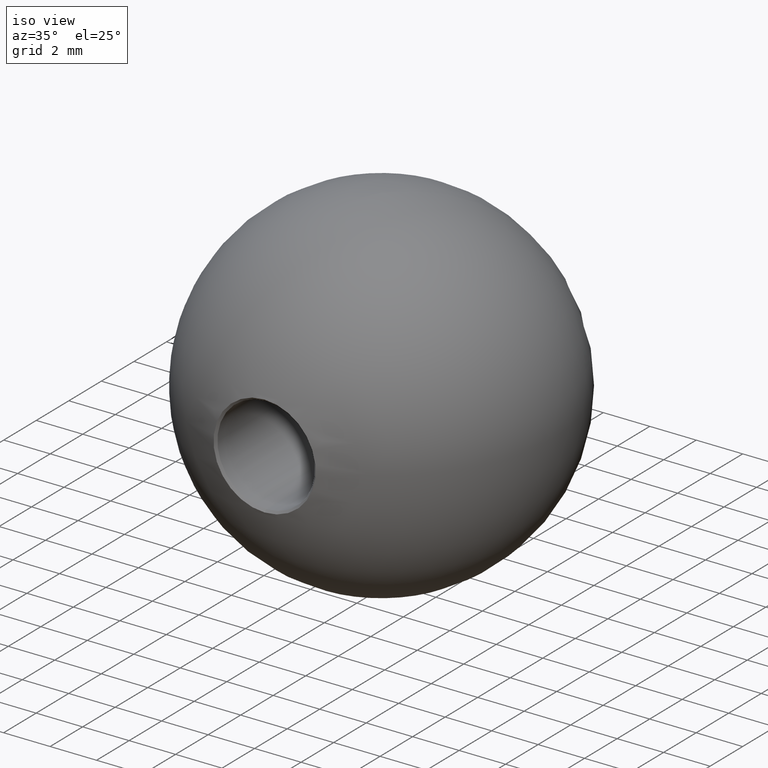
[diagram: clean part render]
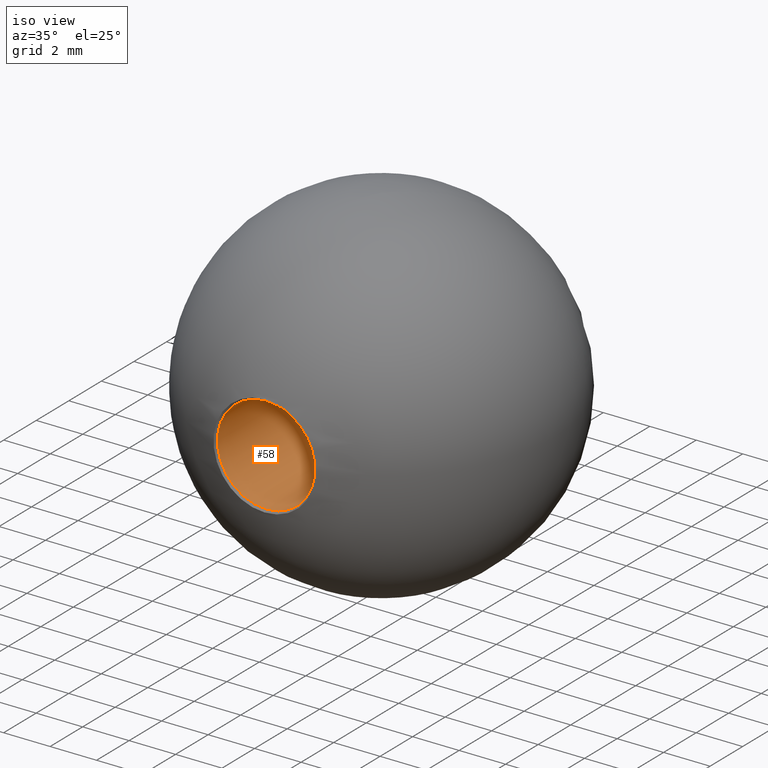
[diagram: same view with one face highlighted and labeled with its STEP entity id]
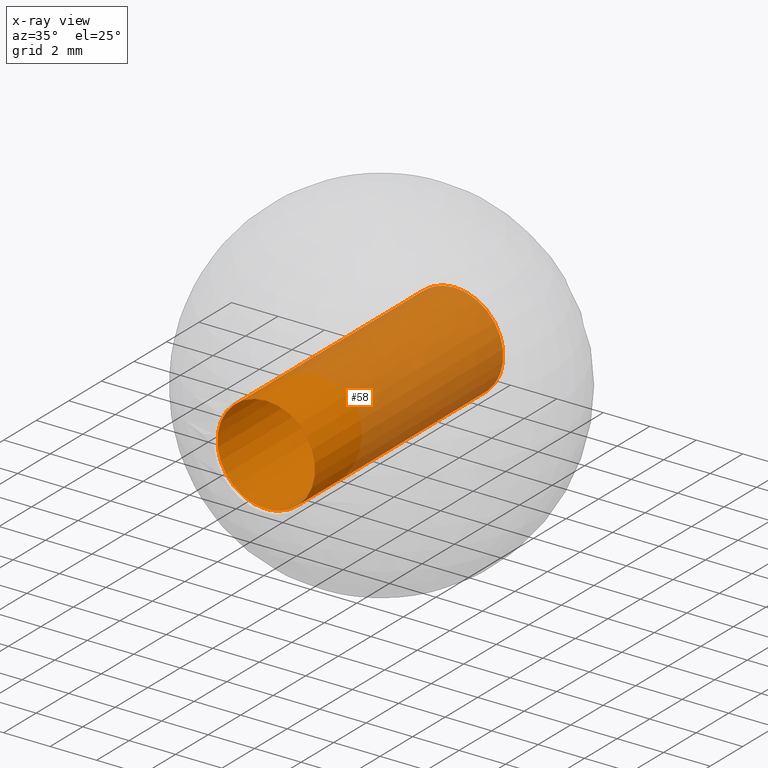
[diagram: x-ray of the same camera — body ghosted, the highlighted face saturated]
A machine part, iso view. The second image highlights one B-rep face of the part: STEP entity #58.
The next image is the same camera in x-ray: the body ghosted, the highlighted face saturated — about 57% of this face is hidden behind the body in this view.
In plain terms, the highlighted cylindrical surface (bore or boss wall) has radius 2.1 mm, axis along (-0, -1, -0).
Its self-contained STEP definition (entity closure, byte-faithful):
#4 = CARTESIAN_POINT ( 'NONE',  ( 0.000000000000000000, 0.4250000000000000444, 0.000000000000000000 ) ) ;
#7 = FACE_OUTER_BOUND ( 'NONE', #91, .T. ) ;
#8 = AXIS2_PLACEMENT_3D ( 'NONE', #44, #78, #73 ) ;
#16 = EDGE_CURVE ( 'NONE', #61, #61, #150, .T. ) ;
#22 = ORIENTED_EDGE ( 'NONE', *, *, #29, .T. ) ;
#29 = EDGE_CURVE ( 'NONE', #77, #77, #39, .T. ) ;
#39 = CIRCLE ( 'NONE', #146, 2.099999999999998757 ) ;
#44 = CARTESIAN_POINT ( 'NONE',  ( 0.000000000000000000, 12.00000000000000000, 0.000000000000000000 ) ) ;
#56 = AXIS2_PLACEMENT_3D ( 'NONE', #116, #133, #60 ) ;
#58 = ADVANCED_FACE ( 'NONE', ( #135, #7 ), #88, .F. ) ;
#60 = DIRECTION ( 'NONE',  ( 0.000000000000000000, 0.000000000000000000, -1.000000000000000000 ) ) ;
#61 = VERTEX_POINT ( 'NONE', #93 ) ;
#73 = DIRECTION ( 'NONE',  ( 0.000000000000000000, 0.000000000000000000, -1.000000000000000000 ) ) ;
#76 = EDGE_LOOP ( 'NONE', ( #101 ) ) ;
#77 = VERTEX_POINT ( 'NONE', #120 ) ;
#78 = DIRECTION ( 'NONE',  ( -0.000000000000000000, -1.000000000000000000, -0.000000000000000000 ) ) ;
#88 = CYLINDRICAL_SURFACE ( 'NONE', #56, 2.099999999999997868 ) ;
#90 = DIRECTION ( 'NONE',  ( -0.000000000000000000, -1.000000000000000000, -0.000000000000000000 ) ) ;
#91 = EDGE_LOOP ( 'NONE', ( #22 ) ) ;
#93 = CARTESIAN_POINT ( 'NONE',  ( 0.000000000000000000, 12.00000000000000000, -2.099999999999997424 ) ) ;
#101 = ORIENTED_EDGE ( 'NONE', *, *, #16, .F. ) ;
#116 = CARTESIAN_POINT ( 'NONE',  ( 0.000000000000000000, 0.000000000000000000, 0.000000000000000000 ) ) ;
#120 = CARTESIAN_POINT ( 'NONE',  ( 0.000000000000000000, 0.4250000000000000444, -2.099999999999998757 ) ) ;
#129 = DIRECTION ( 'NONE',  ( 0.000000000000000000, 0.000000000000000000, -1.000000000000000000 ) ) ;
#133 = DIRECTION ( 'NONE',  ( -0.000000000000000000, -1.000000000000000000, -0.000000000000000000 ) ) ;
#135 = FACE_OUTER_BOUND ( 'NONE', #76, .T. ) ;
#146 = AXIS2_PLACEMENT_3D ( 'NONE', #4, #90, #129 ) ;
#150 = CIRCLE ( 'NONE', #8, 2.099999999999997424 ) ;